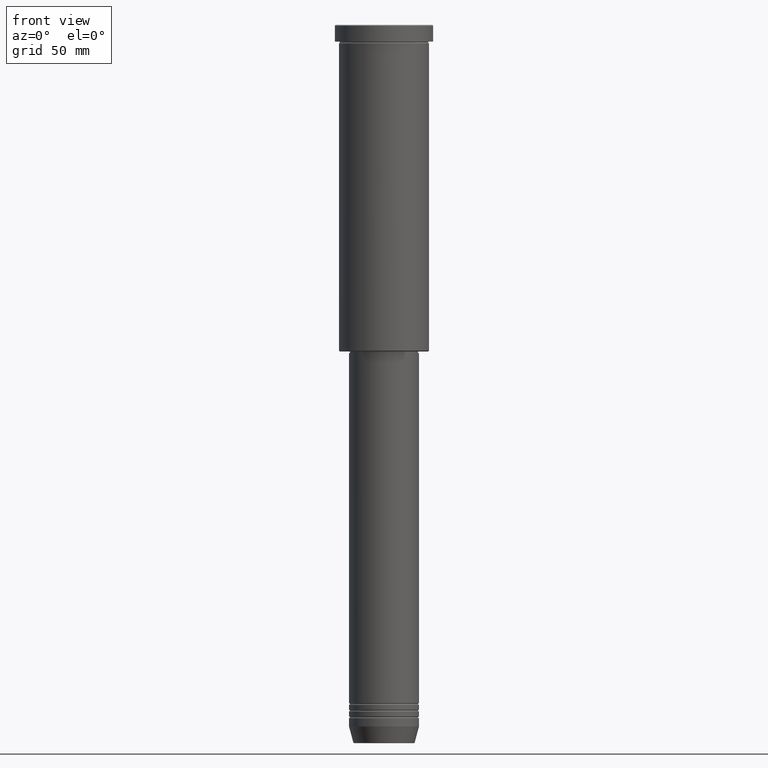
[diagram: clean part render]
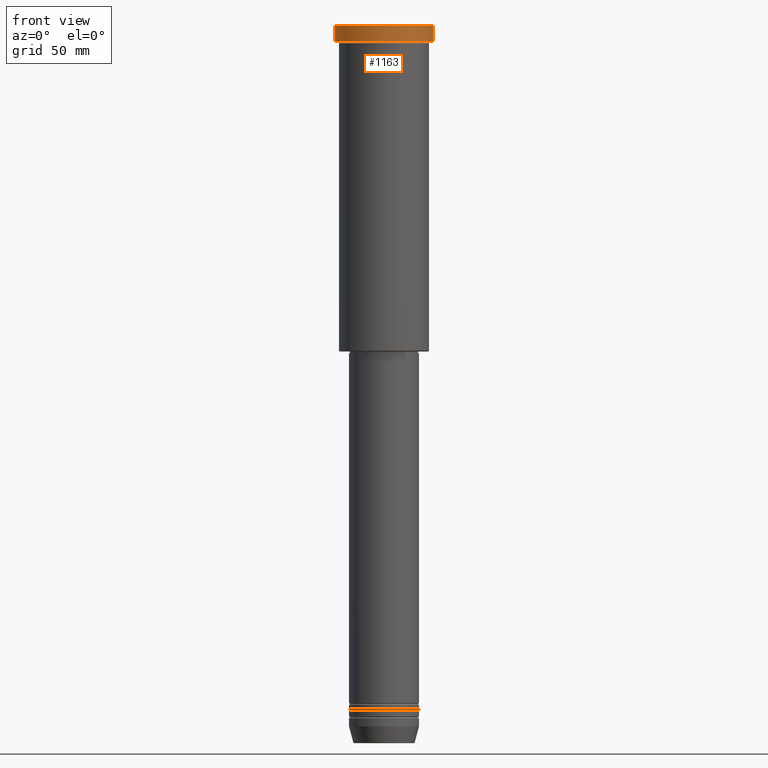
[diagram: same view with one face highlighted and labeled with its STEP entity id]
A machine part, front view. The second image highlights one B-rep face of the part: STEP entity #1163.
In plain terms, the highlighted cylindrical surface (partial cylindrical patch) has radius 29.5 mm, axis along (-0, -0, 1).
Its self-contained STEP definition (entity closure, byte-faithful):
#3 = FACE_OUTER_BOUND ( 'NONE', #1162, .T. ) ;
#78 = CARTESIAN_POINT ( 'NONE',  ( -29.50000000000000000, 3.612708057484691604E-15, -9.999999999999992895 ) ) ;
#99 = DIRECTION ( 'NONE',  ( 0.000000000000000000, 0.000000000000000000, -1.000000000000000000 ) ) ;
#125 = DIRECTION ( 'NONE',  ( -0.000000000000000000, -0.000000000000000000, 1.000000000000000000 ) ) ;
#181 = DIRECTION ( 'NONE',  ( 1.000000000000000000, 0.000000000000000000, 0.000000000000000000 ) ) ;
#196 = ORIENTED_EDGE ( 'NONE', *, *, #1006, .T. ) ;
#199 = DIRECTION ( 'NONE',  ( 1.000000000000000000, 0.000000000000000000, 0.000000000000000000 ) ) ;
#223 = CIRCLE ( 'NONE', #625, 29.50000000000000000 ) ;
#307 = EDGE_CURVE ( 'NONE', #697, #730, #313, .T. ) ;
#313 = LINE ( 'NONE', #672, #459 ) ;
#376 = DIRECTION ( 'NONE',  ( -0.000000000000000000, -0.000000000000000000, 1.000000000000000000 ) ) ;
#380 = CARTESIAN_POINT ( 'NONE',  ( 0.000000000000000000, 0.000000000000000000, 0.000000000000000000 ) ) ;
#405 = CYLINDRICAL_SURFACE ( 'NONE', #406, 29.50000000000000000 ) ;
#406 = AXIS2_PLACEMENT_3D ( 'NONE', #380, #125, #199 ) ;
#418 = EDGE_CURVE ( 'NONE', #730, #635, #223, .T. ) ;
#459 = VECTOR ( 'NONE', #947, 1000.000000000000000 ) ;
#468 = DIRECTION ( 'NONE',  ( 1.000000000000000000, 0.000000000000000000, 0.000000000000000000 ) ) ;
#480 = AXIS2_PLACEMENT_3D ( 'NONE', #640, #376, #181 ) ;
#513 = CARTESIAN_POINT ( 'NONE',  ( -29.50000000000000000, 3.612708057484691604E-15, -0.5000000000000004441 ) ) ;
#625 = AXIS2_PLACEMENT_3D ( 'NONE', #832, #99, #468 ) ;
#635 = VERTEX_POINT ( 'NONE', #513 ) ;
#636 = CARTESIAN_POINT ( 'NONE',  ( -29.50000000000000000, 3.612708057484691604E-15, 0.000000000000000000 ) ) ;
#640 = CARTESIAN_POINT ( 'NONE',  ( 0.000000000000000000, 0.000000000000000000, -9.999999999999992895 ) ) ;
#672 = CARTESIAN_POINT ( 'NONE',  ( 29.50000000000000000, 0.000000000000000000, 0.000000000000000000 ) ) ;
#694 = CARTESIAN_POINT ( 'NONE',  ( 29.50000000000000000, 0.000000000000000000, -0.5000000000000004441 ) ) ;
#697 = VERTEX_POINT ( 'NONE', #1165 ) ;
#723 = ORIENTED_EDGE ( 'NONE', *, *, #418, .T. ) ;
#730 = VERTEX_POINT ( 'NONE', #694 ) ;
#765 = EDGE_CURVE ( 'NONE', #1039, #635, #1080, .T. ) ;
#832 = CARTESIAN_POINT ( 'NONE',  ( 0.000000000000000000, 0.000000000000000000, -0.5000000000000004441 ) ) ;
#879 = CIRCLE ( 'NONE', #480, 29.50000000000000000 ) ;
#947 = DIRECTION ( 'NONE',  ( -0.000000000000000000, -0.000000000000000000, 1.000000000000000000 ) ) ;
#1001 = DIRECTION ( 'NONE',  ( -0.000000000000000000, -0.000000000000000000, 1.000000000000000000 ) ) ;
#1006 = EDGE_CURVE ( 'NONE', #1039, #697, #879, .T. ) ;
#1039 = VERTEX_POINT ( 'NONE', #78 ) ;
#1080 = LINE ( 'NONE', #636, #1159 ) ;
#1151 = ORIENTED_EDGE ( 'NONE', *, *, #765, .F. ) ;
#1159 = VECTOR ( 'NONE', #1001, 1000.000000000000000 ) ;
#1162 = EDGE_LOOP ( 'NONE', ( #1151, #196, #1166, #723 ) ) ;
#1163 = ADVANCED_FACE ( 'NONE', ( #3 ), #405, .T. ) ;
#1165 = CARTESIAN_POINT ( 'NONE',  ( 29.50000000000000000, 0.000000000000000000, -9.999999999999992895 ) ) ;
#1166 = ORIENTED_EDGE ( 'NONE', *, *, #307, .T. ) ;